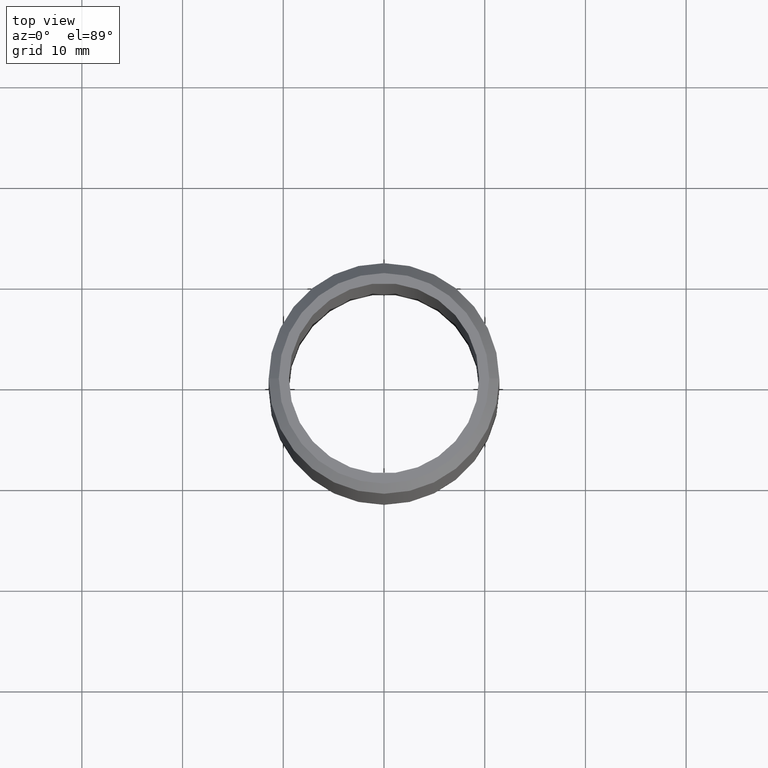
[diagram: clean part render]
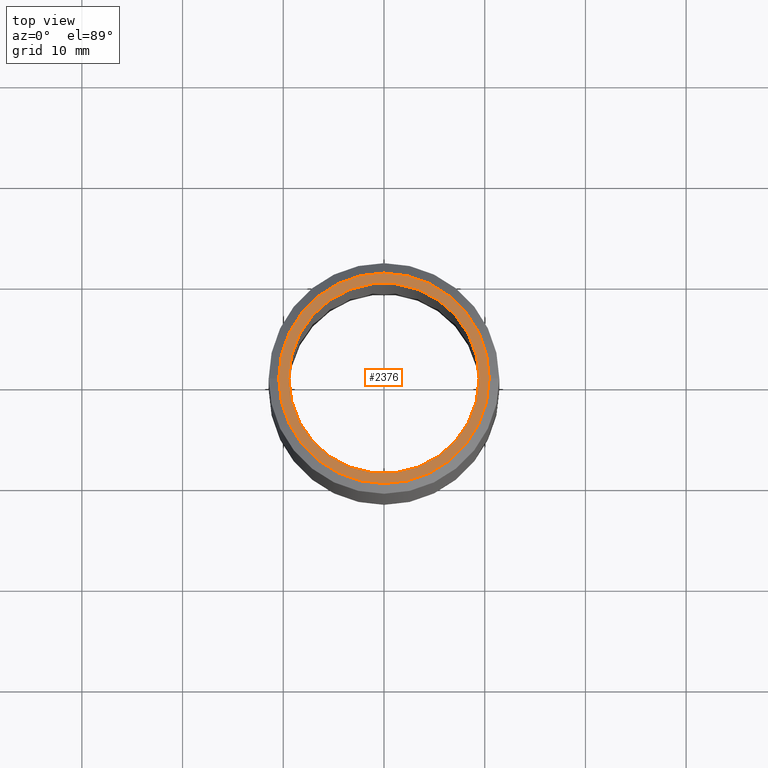
[diagram: same view with one face highlighted and labeled with its STEP entity id]
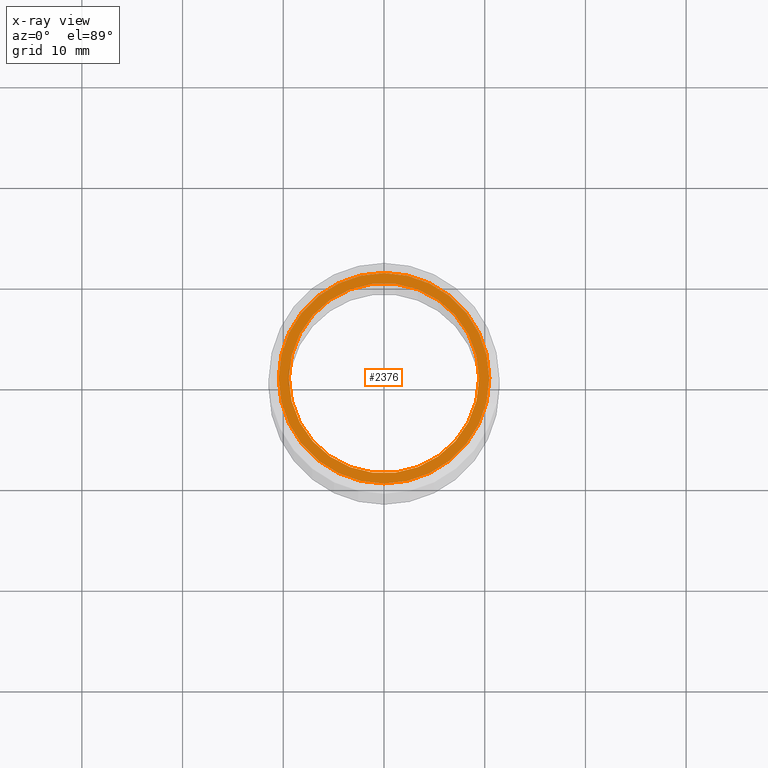
[diagram: x-ray of the same camera — body ghosted, the highlighted face saturated]
A machine part, top view. The second image highlights one B-rep face of the part: STEP entity #2376.
The next image is the same camera in x-ray: the body ghosted, the highlighted face saturated — about 0% of this face is hidden behind the body in this view.
In plain terms, the highlighted planar face has unit normal (0, 0, 1).
Its self-contained STEP definition (entity closure, byte-faithful):
#380 = DIRECTION ( 'NONE',  ( 0.0000000000000000000, 0.0000000000000000000, 1.000000000000000000 ) ) ;
#539 = EDGE_CURVE ( 'NONE', #7615, #4643, #11302, .T. ) ;
#649 = CARTESIAN_POINT ( 'NONE',  ( 0.0000000000000000000, 0.0000000000000000000, 32.50000000000000000 ) ) ;
#972 = FACE_BOUND ( 'NONE', #1643, .T. ) ;
#1020 = DIRECTION ( 'NONE',  ( 0.0000000000000000000, 0.0000000000000000000, 1.000000000000000000 ) ) ;
#1281 = AXIS2_PLACEMENT_3D ( 'NONE', #4009, #1020, #1975 ) ;
#1308 = DIRECTION ( 'NONE',  ( 1.000000000000000000, 0.0000000000000000000, 0.0000000000000000000 ) ) ;
#1450 = DIRECTION ( 'NONE',  ( 1.000000000000000000, 0.0000000000000000000, -0.0000000000000000000 ) ) ;
#1465 = CIRCLE ( 'NONE', #11936, 10.45000000000000600 ) ;
#1643 = EDGE_LOOP ( 'NONE', ( #7837, #7786 ) ) ;
#1975 = DIRECTION ( 'NONE',  ( 1.000000000000000000, 0.0000000000000000000, 0.0000000000000000000 ) ) ;
#2357 = CIRCLE ( 'NONE', #1281, 9.449999999999999300 ) ;
#2376 = ADVANCED_FACE ( 'NONE', ( #4639, #972 ), #6253, .T. ) ;
#2491 = CARTESIAN_POINT ( 'NONE',  ( -10.45000000000000600, 0.0000000000000000000, 32.50000000000000000 ) ) ;
#2942 = CARTESIAN_POINT ( 'NONE',  ( 0.0000000000000000000, 0.0000000000000000000, 32.50000000000000000 ) ) ;
#3001 = CIRCLE ( 'NONE', #8923, 10.45000000000000600 ) ;
#3178 = CARTESIAN_POINT ( 'NONE',  ( 0.0000000000000000000, 0.0000000000000000000, 32.50000000000000000 ) ) ;
#4009 = CARTESIAN_POINT ( 'NONE',  ( 0.0000000000000000000, 0.0000000000000000000, 32.50000000000000000 ) ) ;
#4345 = EDGE_CURVE ( 'NONE', #10076, #11182, #3001, .T. ) ;
#4527 = DIRECTION ( 'NONE',  ( 0.0000000000000000000, 0.0000000000000000000, 1.000000000000000000 ) ) ;
#4639 = FACE_OUTER_BOUND ( 'NONE', #6479, .T. ) ;
#4643 = VERTEX_POINT ( 'NONE', #10167 ) ;
#6253 = PLANE ( 'NONE',  #12187 ) ;
#6479 = EDGE_LOOP ( 'NONE', ( #7327, #8953 ) ) ;
#6815 = DIRECTION ( 'NONE',  ( 1.000000000000000000, 0.0000000000000000000, 0.0000000000000000000 ) ) ;
#7076 = DIRECTION ( 'NONE',  ( 0.0000000000000000000, 0.0000000000000000000, 1.000000000000000000 ) ) ;
#7327 = ORIENTED_EDGE ( 'NONE', *, *, #4345, .T. ) ;
#7613 = CARTESIAN_POINT ( 'NONE',  ( -9.449999999999999300, 0.0000000000000000000, 32.50000000000000000 ) ) ;
#7615 = VERTEX_POINT ( 'NONE', #7613 ) ;
#7786 = ORIENTED_EDGE ( 'NONE', *, *, #8642, .F. ) ;
#7837 = ORIENTED_EDGE ( 'NONE', *, *, #539, .F. ) ;
#8642 = EDGE_CURVE ( 'NONE', #4643, #7615, #2357, .T. ) ;
#8923 = AXIS2_PLACEMENT_3D ( 'NONE', #3178, #7076, #1308 ) ;
#8953 = ORIENTED_EDGE ( 'NONE', *, *, #11270, .T. ) ;
#9151 = CARTESIAN_POINT ( 'NONE',  ( 0.0000000000000000000, 0.0000000000000000000, 32.50000000000000000 ) ) ;
#10076 = VERTEX_POINT ( 'NONE', #2491 ) ;
#10167 = CARTESIAN_POINT ( 'NONE',  ( 9.449999999999999300, 1.157291225194248800E-015, 32.50000000000000000 ) ) ;
#11182 = VERTEX_POINT ( 'NONE', #12218 ) ;
#11270 = EDGE_CURVE ( 'NONE', #11182, #10076, #1465, .T. ) ;
#11302 = CIRCLE ( 'NONE', #11609, 9.449999999999999300 ) ;
#11609 = AXIS2_PLACEMENT_3D ( 'NONE', #2942, #11649, #6815 ) ;
#11649 = DIRECTION ( 'NONE',  ( 0.0000000000000000000, 0.0000000000000000000, 1.000000000000000000 ) ) ;
#11936 = AXIS2_PLACEMENT_3D ( 'NONE', #649, #4527, #12173 ) ;
#12173 = DIRECTION ( 'NONE',  ( 1.000000000000000000, 0.0000000000000000000, 0.0000000000000000000 ) ) ;
#12187 = AXIS2_PLACEMENT_3D ( 'NONE', #9151, #380, #1450 ) ;
#12218 = CARTESIAN_POINT ( 'NONE',  ( 10.45000000000000600, 1.340988245066352100E-015, 32.50000000000000000 ) ) ;